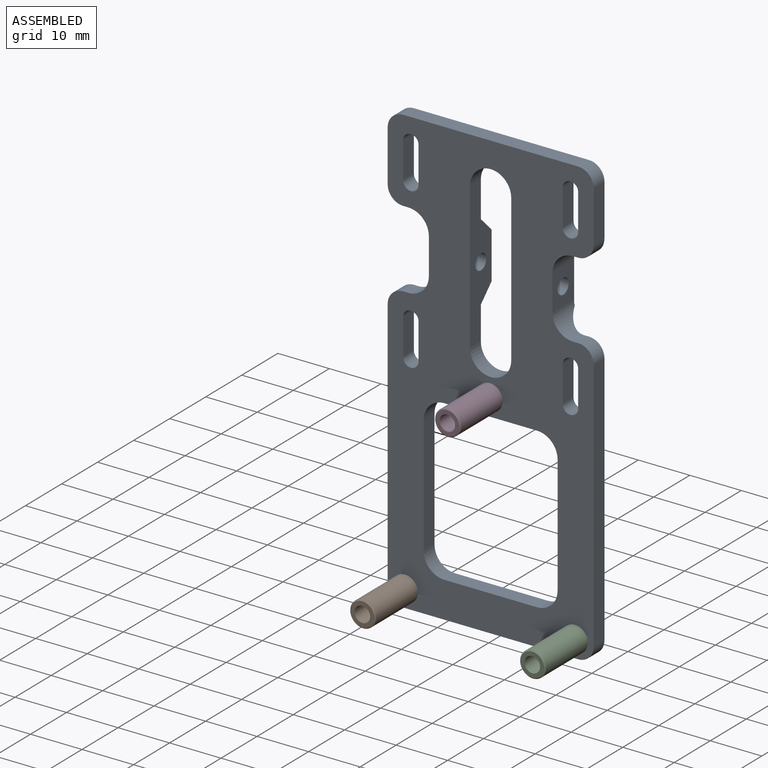
[diagram: assembled view]
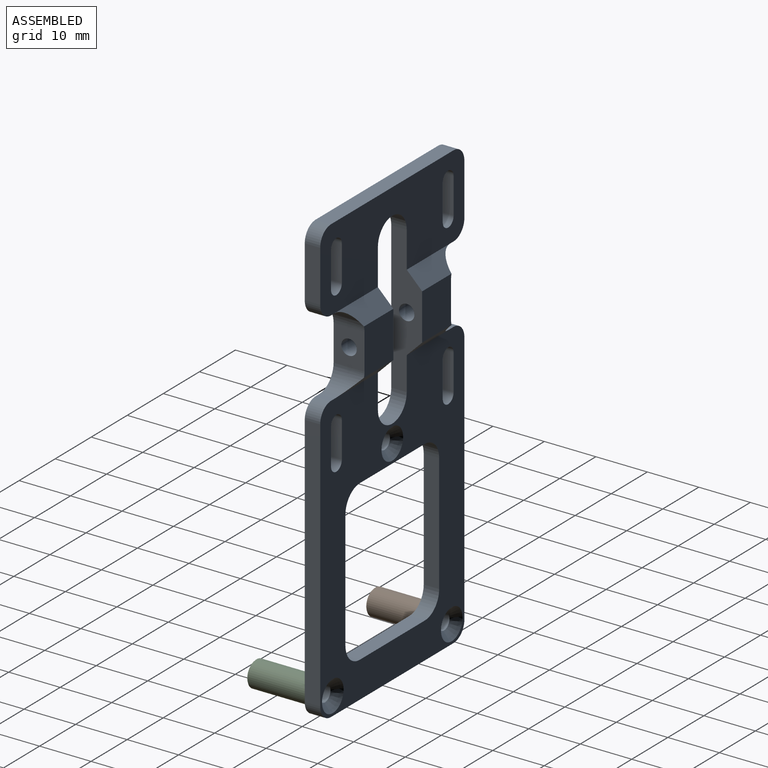
[diagram: assembled view, second angle]
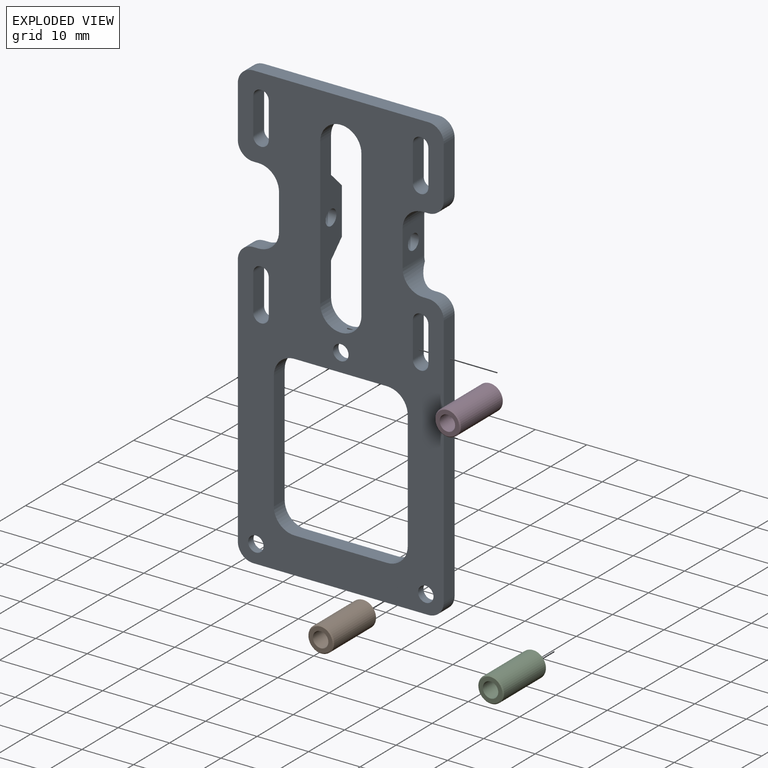
[diagram: exploded view]
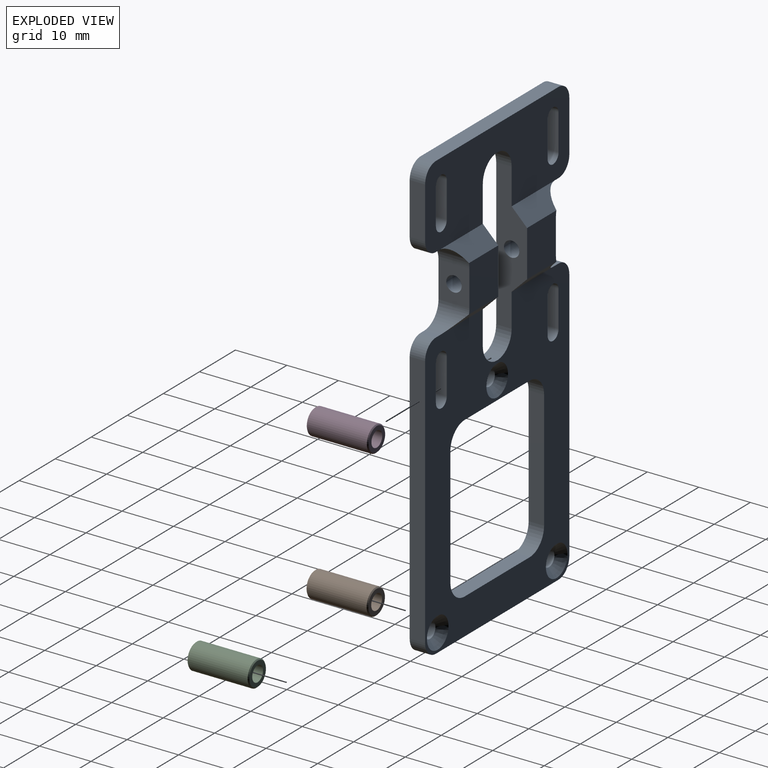
[diagram: exploded view, second angle]
ASSEMBLY  parts=4 mates=3
PART A: 69 faces, bbox 40x6x86.5 mm
  f0: plane 40x16mm, normal (0,1,0), area 495mm2, adj f2,f10,f11,f12,f13,f14,f22,f23
  f1: plane 7x3mm, normal (-1,0,0), area 21mm2, adj f16,f17,f24,f25
  f2: plane 3x1mm, normal (0,0,-1), area 3mm2, adj f0,f16,f27,f33
  f3: plane 7x6mm, normal (-1,0,0), area 34.9mm2, adj f16,f30,f33,f37,f39
  f4: plane 3x1mm, normal (0,0,1), area 3mm2, adj f16,f17,f28,f37
  f5: plane 49.5x3mm, normal (-1,0,0), area 148.5mm2, adj f16,f17,f28,f29
  f6: plane 34x3mm, normal (0,0,-1), area 102mm2, adj f16,f17,f29,f60
  f7: plane 18x3mm, normal (0,0,1), area 54mm2, adj f16,f17,f38,f67
  f8: plane 23x3mm, normal (1,0,0), area 69mm2, adj f16,f17,f35,f38
  f9: plane 18x3mm, normal (0,0,-1), area 54mm2, adj f16,f17,f35,f65
  f10: plane 28.5x6mm, normal (1,0,0), area 114.4mm2, adj f0,f16,f17,f30,f31,f32,f34,f36
  f11: plane 34x3mm, normal (0,0,1), area 102mm2, adj f0,f16,f26,f57
  f12: plane 7x3mm, normal (-1,0,0), area 21mm2, adj f0,f16,f22,f23
  f13: plane 10x3mm, normal (-1,0,0), area 30mm2, adj f0,f16,f26,f27
  f14: plane 7x3mm, normal (1,0,0), area 21mm2, adj f0,f16,f22,f23
  f15: plane 7x3mm, normal (1,0,0), area 21mm2, adj f16,f17,f24,f25
  f16: plane 86.5x40mm, normal (0,-1,0), area 2014.3mm2, adj f1,f2,f3,f4,f5,f6,f7,f8
  f17: plane 55.5x40mm, normal (0,1,0), area 1201.9mm2, adj f1,f4,f5,f6,f7,f8,f9,f10
  f18: cylinder r=1.5mm len=3mm, axis (0,1,0), area 14.1mm2, adj f16,f19
  f19: cone r=1.5mm half-angle=45deg, axis (0,1,0), area 30mm2, adj f17,f18
  f20: cylinder r=1.5mm len=3mm, axis (0,1,0), area 14.1mm2, adj f16,f21
  f21: cone r=1.5mm half-angle=45deg, axis (0,1,0), area 30mm2, adj f17,f20
  f22: cylinder r=1.5mm len=3mm, axis (0,-1,0), area 14.1mm2, adj f0,f12,f14,f16
  f23: cylinder r=1.5mm len=3mm, axis (0,1,0), area 14.1mm2, adj f0,f12,f14,f16
  f24: cylinder r=1.5mm len=3mm, axis (0,1,0), area 14.1mm2, adj f1,f15,f16,f17
  f25: cylinder r=1.5mm len=3mm, axis (0,-1,0), area 14.1mm2, adj f1,f15,f16,f17
  f26: cylinder r=3mm len=3mm, axis (0,1,0), area 14.1mm2, adj f0,f11,f13,f16
  f27: cylinder r=3mm len=3mm, axis (0,1,0), area 14.1mm2, adj f0,f2,f13,f16
  f28: cylinder r=3mm len=3mm, axis (0,-1,0), area 14.1mm2, adj f4,f5,f16,f17
  f29: cylinder r=3mm len=3mm, axis (0,-1,0), area 14.1mm2, adj f5,f6,f16,f17
  f30: plane 9x8.13mm, normal (0,1,0), area 72.1mm2, adj f3,f10,f31,f32,f33,f37
  f31: plane 12x3mm, normal (0,0.71,0.71), area 38.7mm2, adj f0,f10,f30,f33
  f32: plane 12x3mm, normal (0,0.71,-0.71), area 38.7mm2, adj f10,f17,f30,f37
  f33: cylinder r=4mm len=6mm, axis (0,1,0), area 27.5mm2, adj f2,f3,f16,f30,f31
  f34: cylinder r=4mm len=8mm, axis (0,-1,0), area 37.7mm2, adj f0,f10,f16,f46
  f35: cylinder r=4mm len=4mm, axis (0,-1,0), area 18.8mm2, adj f8,f9,f16,f17
  f36: cylinder r=4mm len=8mm, axis (0,-1,0), area 37.7mm2, adj f10,f16,f17,f46
  f37: cylinder r=4mm len=6mm, axis (0,-1,0), area 27.5mm2, adj f3,f4,f16,f30,f32
  f38: cylinder r=4mm len=4mm, axis (0,-1,0), area 18.8mm2, adj f7,f8,f16,f17
  f39: cylinder r=1.5mm len=8mm, axis (-1,0,0), area 75.4mm2, adj f3,f10
  f40: plane 7x3mm, normal (1,0,0), area 21mm2, adj f16,f17,f55,f56
  f41: plane 3x1mm, normal (0,0,-1), area 3mm2, adj f0,f16,f58,f64
  f42: plane 7x6mm, normal (1,0,0), area 34.9mm2, adj f16,f61,f64,f66,f68
  f43: plane 3x1mm, normal (0,0,1), area 3mm2, adj f16,f17,f59,f66
  f44: plane 49.5x3mm, normal (1,0,0), area 148.5mm2, adj f16,f17,f59,f60
  f45: plane 23x3mm, normal (-1,0,0), area 69mm2, adj f16,f17,f65,f67
  f46: plane 28.5x6mm, normal (-1,0,0), area 114.4mm2, adj f0,f16,f17,f34,f36,f61,f62,f63
  f47: plane 7x3mm, normal (1,0,0), area 21mm2, adj f0,f16,f53,f54
  f48: plane 10x3mm, normal (1,0,0), area 30mm2, adj f0,f16,f57,f58
  f49: plane 7x3mm, normal (-1,0,0), area 21mm2, adj f0,f16,f53,f54
  f50: plane 7x3mm, normal (-1,0,0), area 21mm2, adj f16,f17,f55,f56
  f51: cylinder r=1.5mm len=3mm, axis (0,1,0), area 14.1mm2, adj f16,f52
  f52: cone r=1.5mm half-angle=45deg, axis (0,1,0), area 30mm2, adj f17,f51
  f53: cylinder r=1.5mm len=3mm, axis (0,-1,0), area 14.1mm2, adj f0,f16,f47,f49
  f54: cylinder r=1.5mm len=3mm, axis (0,1,0), area 14.1mm2, adj f0,f16,f47,f49
  f55: cylinder r=1.5mm len=3mm, axis (0,1,0), area 14.1mm2, adj f16,f17,f40,f50
  f56: cylinder r=1.5mm len=3mm, axis (0,-1,0), area 14.1mm2, adj f16,f17,f40,f50
  f57: cylinder r=3mm len=3mm, axis (0,1,0), area 14.1mm2, adj f0,f11,f16,f48
  f58: cylinder r=3mm len=3mm, axis (0,1,0), area 14.1mm2, adj f0,f16,f41,f48
  f59: cylinder r=3mm len=3mm, axis (0,-1,0), area 14.1mm2, adj f16,f17,f43,f44
  f60: cylinder r=3mm len=3mm, axis (0,-1,0), area 14.1mm2, adj f6,f16,f17,f44
  f61: plane 9x8.13mm, normal (0,1,0), area 72.1mm2, adj f42,f46,f62,f63,f64,f66
  f62: plane 12x3mm, normal (0,0.71,0.71), area 38.7mm2, adj f0,f46,f61,f64
  f63: plane 12x3mm, normal (0,0.71,-0.71), area 38.7mm2, adj f17,f46,f61,f66
  f64: cylinder r=4mm len=6mm, axis (0,1,0), area 27.5mm2, adj f16,f41,f42,f61,f62
  f65: cylinder r=4mm len=4mm, axis (0,-1,0), area 18.8mm2, adj f9,f16,f17,f45
  f66: cylinder r=4mm len=6mm, axis (0,-1,0), area 27.5mm2, adj f16,f42,f43,f61,f63
  f67: cylinder r=4mm len=4mm, axis (0,-1,0), area 18.8mm2, adj f7,f16,f17,f45
  f68: cylinder r=1.5mm len=8mm, axis (1,0,0), area 75.4mm2, adj f42,f46
PART B: 6 faces, bbox 5x5x12 mm
  f0: cylinder r=2.5mm len=11.6mm, axis (0,0,-1), area 182.2mm2, adj f3,f4
  f1: plane 4.6x4.6mm, normal (0,0,1), area 9.6mm2, adj f4,f5
  f2: plane 4.6x4.6mm, normal (0,0,-1), area 9.6mm2, adj f3,f5
  f3: cone r=2.5mm half-angle=45deg, axis (0,0,1), area 4.3mm2, adj f0,f2
  f4: cone r=2.3mm half-angle=45deg, axis (0,0,-1), area 4.3mm2, adj f0,f1
  f5: cylinder r=1.5mm len=12mm, axis (0,0,-1), area 113.1mm2, adj f1,f2
PART C: same geometry as B
PART D: same geometry as B
PLACE A t=(0,43.5,43.75)mm
PLACE B rot(axis=(1,0,0),90deg) t=(-16.5,40.5,4)mm
PLACE C rot(axis=(1,0,0),90deg) t=(16.5,40.5,4)mm
PLACE D rot(axis=(1,0,0),90deg) t=(0,40.5,42)mm
MATE fastened A.f18 <-> D.f0  axis (0,-1,0) through (0,40.5,42)mm
MATE fastened A.f51 <-> C.f0  axis (0,-1,0) through (16.5,40.5,4)mm
MATE fastened B.f0 <-> A.f20  axis (0,1,0) through (-16.5,40.5,4)mm
